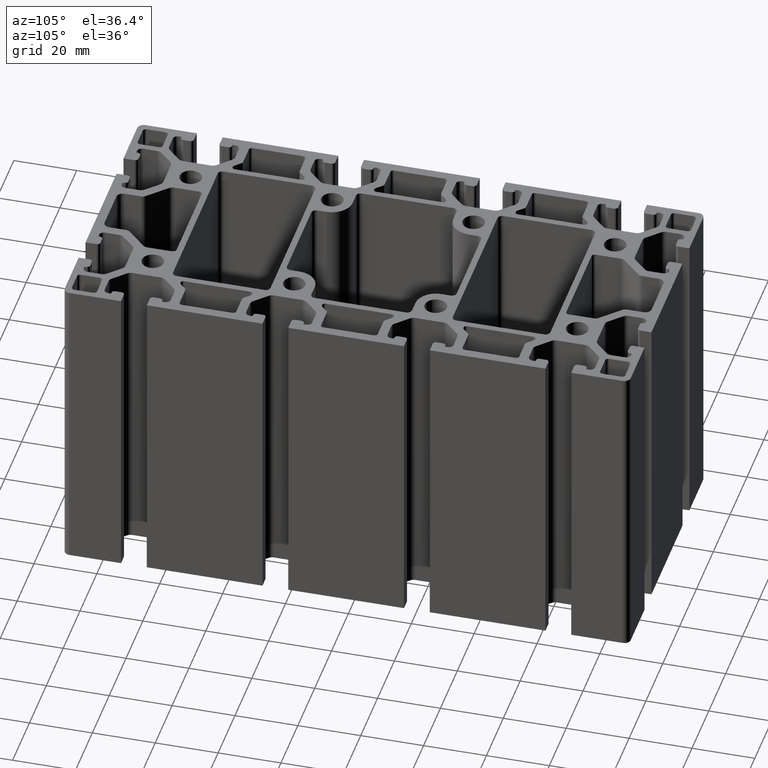
[diagram: clean part render]
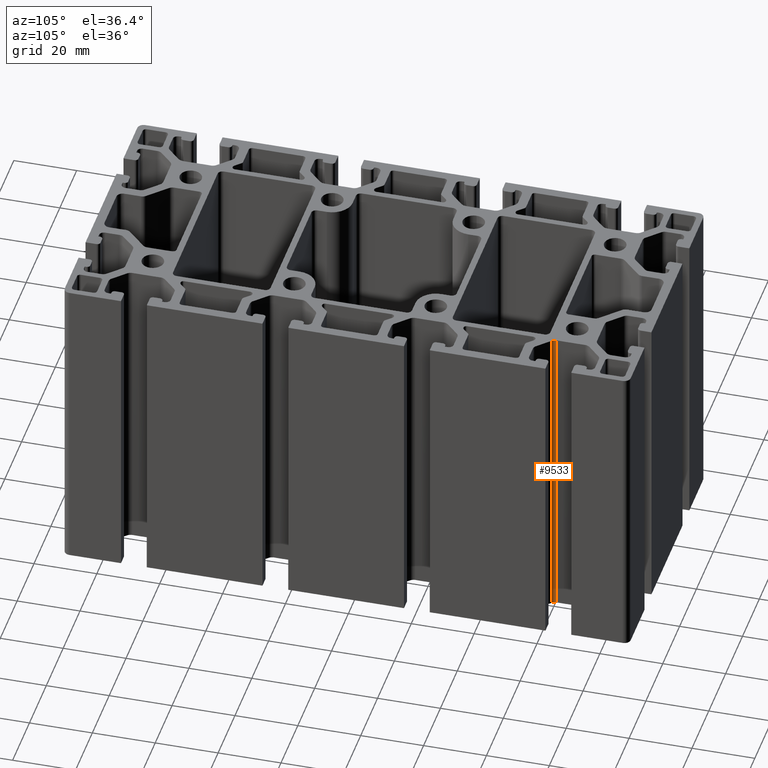
[diagram: same view with one face highlighted and labeled with its STEP entity id]
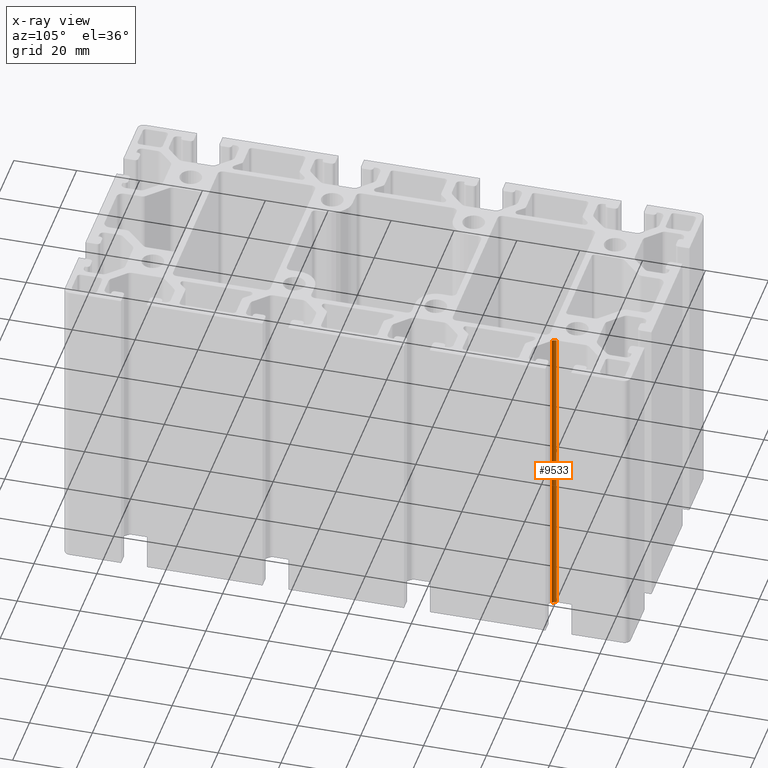
[diagram: x-ray of the same camera — body ghosted, the highlighted face saturated]
A machine part, auxiliary view. The second image highlights one B-rep face of the part: STEP entity #9533.
The next image is the same camera in x-ray: the body ghosted, the highlighted face saturated — about 0% of this face is hidden behind the body in this view.
In plain terms, the highlighted cylindrical surface (edge-blend (fillet) strip) has radius 2 mm, axis along (0, 0, 1).
Its self-contained STEP definition (entity closure, byte-faithful):
#615=FACE_OUTER_BOUND('',#1103,.T.);
#1103=EDGE_LOOP('',(#7289,#7290,#7291,#7292));
#1932=LINE('',#15205,#2924);
#1934=LINE('',#15211,#2926);
#2924=VECTOR('',#12340,100.);
#2926=VECTOR('',#12346,100.);
#3599=CIRCLE('',#10284,2.00000000000004);
#3600=CIRCLE('',#10285,2.00000000000004);
#4349=VERTEX_POINT('',#15202);
#4350=VERTEX_POINT('',#15204);
#4351=VERTEX_POINT('',#15208);
#4352=VERTEX_POINT('',#15210);
#5582=EDGE_CURVE('',#4349,#4350,#1932,.T.);
#5584=EDGE_CURVE('',#4351,#4349,#3599,.T.);
#5585=EDGE_CURVE('',#4351,#4352,#1934,.T.);
#5586=EDGE_CURVE('',#4352,#4350,#3600,.T.);
#7289=ORIENTED_EDGE('',*,*,#5584,.F.);
#7290=ORIENTED_EDGE('',*,*,#5585,.T.);
#7291=ORIENTED_EDGE('',*,*,#5586,.T.);
#7292=ORIENTED_EDGE('',*,*,#5582,.F.);
#9162=CYLINDRICAL_SURFACE('',#10283,2.00000000000004);
#9533=ADVANCED_FACE('',(#615),#9162,.F.);
#10283=AXIS2_PLACEMENT_3D('',#15207,#12342,#12343);
#10284=AXIS2_PLACEMENT_3D('',#15209,#12344,#12345);
#10285=AXIS2_PLACEMENT_3D('',#15212,#12347,#12348);
#12340=DIRECTION('',(0.,0.,-1.));
#12342=DIRECTION('center_axis',(0.,0.,1.));
#12343=DIRECTION('ref_axis',(1.,1.75228720351489E-14,0.));
#12344=DIRECTION('center_axis',(0.,0.,-1.));
#12345=DIRECTION('ref_axis',(1.,1.75228720351489E-14,0.));
#12346=DIRECTION('',(0.,0.,-1.));
#12347=DIRECTION('center_axis',(0.,0.,-1.));
#12348=DIRECTION('ref_axis',(1.,1.75228720351489E-14,0.));
#15202=CARTESIAN_POINT('',(62.25,61.5093806572027,0.));
#15204=CARTESIAN_POINT('',(62.25,61.5093806572027,-100.));
#15205=CARTESIAN_POINT('',(62.25,61.5093806572027,0.));
#15207=CARTESIAN_POINT('Origin',(64.25,61.5093806572028,0.));
#15208=CARTESIAN_POINT('',(62.835786437627,60.0951670948297,0.));
#15209=CARTESIAN_POINT('Origin',(64.25,61.5093806572028,0.));
#15210=CARTESIAN_POINT('',(62.835786437627,60.0951670948297,-100.));
#15211=CARTESIAN_POINT('',(62.835786437627,60.0951670948297,0.));
#15212=CARTESIAN_POINT('Origin',(64.25,61.5093806572028,-100.));